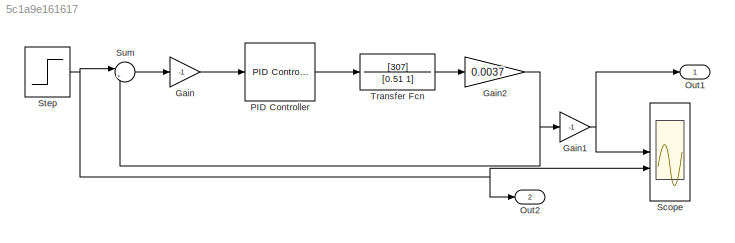
MODEL slx_5c1a9e161617
KIND model
CONFIG AbsTol = auto
CONFIG EnableMultiTasking = off
CONFIG FixedStep = auto
CONFIG MaxStep = auto
CONFIG MinStep = auto
CONFIG RelTol = 1e-3
CONFIG SampleTimeConstraint = Unconstrained
CONFIG SolverName = VariableStepAuto
CONFIG StartTime = 0.0
CONFIG StopTime = 10.0
BLOCK [Gain] Gain
  Gain = -1
BLOCK [Gain] Gain1
  Gain = -1
BLOCK [Gain] Gain2
  Gain = 0.0037
BLOCK [Outport] Out1
  SignalName = output
BLOCK [Outport] Out2
  Port = 2
  SignalName = input
BLOCK [Reference] PID Controller  REF=slpidlib/PID Controller
  LibrarySourceBlock = simulink/Continuous/PID Controller
  SourceBlock = slpidlib/PID Controller
  SourceType = PID 1dof
BLOCK [Scope] Scope
  Floating = off
  NumInputPorts = 2
  ScopeSpecificationString = Simulink.scopes.TimeScopeBlockCfg('CurrentConfiguration', extmgr.ConfigurationSet(extmgr.Configuration('Core','General UI',true),extmgr.Configuration('Core','Source UI',true),extmgr.Configuration('Sources','WiredSimulink',true),extmgr.Configuration('Visuals','Time Domain',true,'SerializedDisplays',{struct('MinYLimReal','-0.625','MaxYLimReal','5.625','YLabelReal','','MinYLimMag','0.00000','MaxYLimM...<+1376ch>
BLOCK [Step] Step
  After = 5
  SampleTime = 0
BLOCK [Sum] Sum
  Inputs = |++
BLOCK [TransferFcn] Transfer Fcn
  Denominator = [0.51 1]
  Numerator = [307]
NET Gain1:1 -> Out1:1, Scope:1
NET Gain2:1 -> Gain1:1, Sum:2
LINE Gain:1 -> PID Controller:1
LINE PID Controller:1 -> Transfer Fcn:1
NET Step:1 -> Out2:1, Scope:2, Sum:1
LINE Sum:1 -> Gain:1
LINE Transfer Fcn:1 -> Gain2:1
note: NET lines group one-source signal fan-out (src -> all destinations, sorted); 1:1 wires keep LINE
